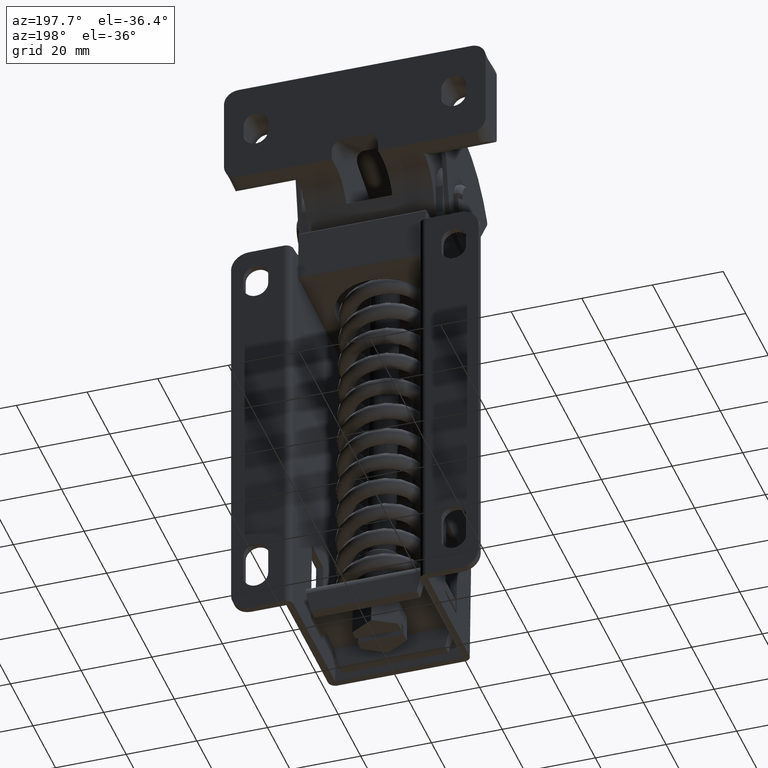
[diagram: clean part render]
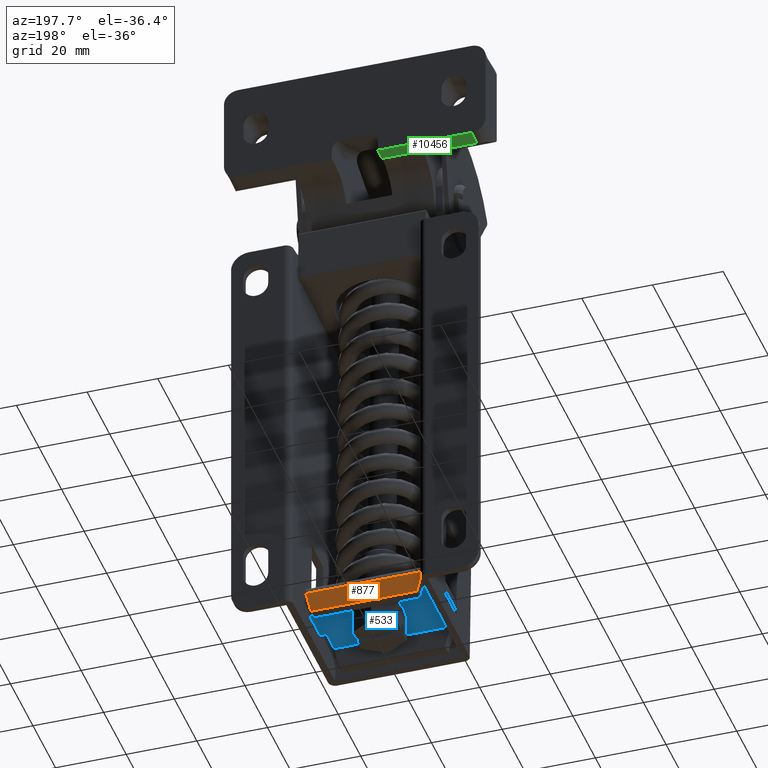
[diagram: same view with three faces highlighted in distinct colors, each labeled with its STEP entity id]
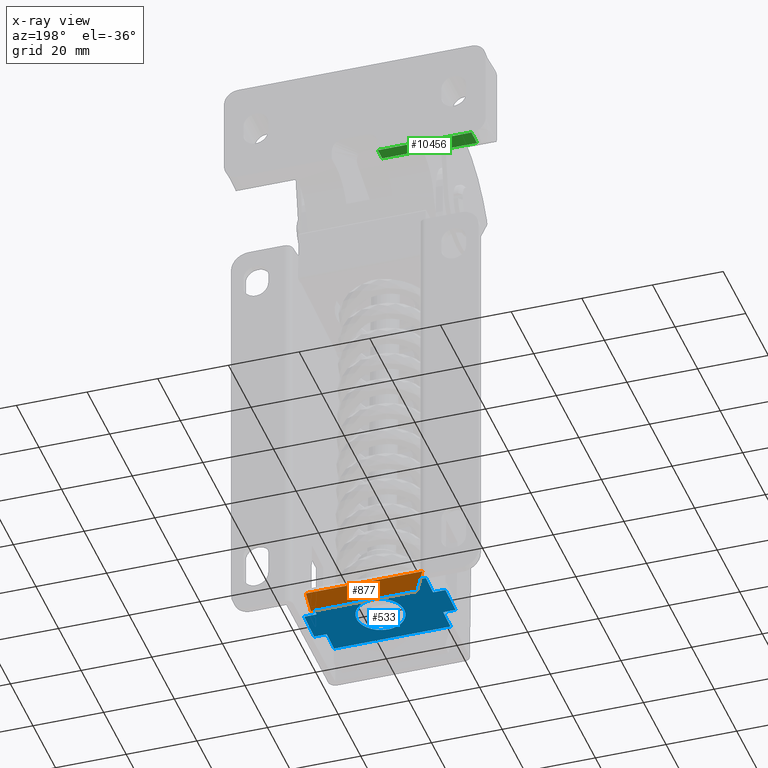
[diagram: x-ray of the same camera — body ghosted, the three highlighted faces saturated]
A machine part, auxiliary view with three faces highlighted in distinct colors.
The next image is the same camera in x-ray (body ghosted, the three faces saturated) — at least one of them is partly hidden behind the body in this view.
Their STEP definitions:

[orange] entity #877 — the highlighted face is a freeform B-spline surface patch.
#358=CARTESIAN_POINT('',(16.499504424450251,20.0,-134.536911000000000));
#359=VERTEX_POINT('',#358);
#365=CARTESIAN_POINT('',(-16.499504424450251,20.0,-134.536911000000000));
#366=VERTEX_POINT('',#365);
#367=CARTESIAN_POINT('',(-16.499504424450251,20.0,-134.536911000000000));
#368=CARTESIAN_POINT('',(16.499504424450251,20.0,-134.536911000000000));
#369=QUASI_UNIFORM_CURVE('',1,(#367,#368),.UNSPECIFIED.,.F.,.U.);
#370=EDGE_CURVE('',#366,#359,#369,.T.);
#539=CARTESIAN_POINT('',(-15.0,20.0,-140.999985000000010));
#540=VERTEX_POINT('',#539);
#553=CARTESIAN_POINT('',(-15.0,20.0,-140.999985000000010));
#554=CARTESIAN_POINT('',(-16.499504424450251,20.0,-134.536911000000000));
#555=QUASI_UNIFORM_CURVE('',1,(#553,#554),.UNSPECIFIED.,.F.,.U.);
#556=EDGE_CURVE('',#540,#366,#555,.T.);
#572=CARTESIAN_POINT('',(15.0,20.0,-140.999985000000010));
#573=VERTEX_POINT('',#572);
#579=CARTESIAN_POINT('',(16.499504424450251,20.0,-134.536911000000000));
#580=CARTESIAN_POINT('',(15.0,20.0,-140.999985000000010));
#581=QUASI_UNIFORM_CURVE('',1,(#579,#580),.UNSPECIFIED.,.F.,.U.);
#582=EDGE_CURVE('',#359,#573,#581,.T.);
#862=CARTESIAN_POINT('',(-18.147804542723261,20.0,-141.322815291090510));
#863=CARTESIAN_POINT('',(-18.147804542723261,20.0,-134.214080304418900));
#864=CARTESIAN_POINT('',(18.147805722859779,20.0,-141.322815291090510));
#865=CARTESIAN_POINT('',(18.147805722859779,20.0,-134.214080304418900));
#866=B_SPLINE_SURFACE_WITH_KNOTS('',1,1,((#862,#864),(#863,#865)),.UNSPECIFIED.,.F.,.F.,.U.,(2,2),(2,2),(0.0,7.108734986671578),(0.0,36.295610265583051),.UNSPECIFIED.);
#867=ORIENTED_EDGE('',*,*,#556,.T.);
#868=ORIENTED_EDGE('',*,*,#370,.T.);
#869=ORIENTED_EDGE('',*,*,#582,.T.);
#870=CARTESIAN_POINT('',(-15.0,20.0,-140.999985000000010));
#871=CARTESIAN_POINT('',(15.0,20.0,-140.999985000000010));
#872=QUASI_UNIFORM_CURVE('',1,(#870,#871),.UNSPECIFIED.,.F.,.U.);
#873=EDGE_CURVE('',#540,#573,#872,.T.);
#874=ORIENTED_EDGE('',*,*,#873,.F.);
#875=EDGE_LOOP('',(#867,#868,#869,#874));
#876=FACE_OUTER_BOUND('',#875,.T.);
#877=ADVANCED_FACE('',(#876),#866,.T.);

[blue] entity #533 — the highlighted face is a freeform B-spline surface patch.
#62=CARTESIAN_POINT('',(-0.837864014509651,12.170217009320570,-134.534775000000000));
#63=VERTEX_POINT('',#62);
#64=CARTESIAN_POINT('',(-6.750000000000001,5.472420066057080,-134.534775000000000));
#65=VERTEX_POINT('',#64);
#66=CARTESIAN_POINT('',(-0.837864014509651,12.170217009320572,-134.534774999999970));
#67=CARTESIAN_POINT('',(-6.750000000000002,11.430635616226965,-134.534775000000000));
#68=CARTESIAN_POINT('',(-6.750000000000001,5.472420066057080,-134.534775000000000));
#76=(BOUNDED_CURVE()B_SPLINE_CURVE(2,(#66,#67,#68),.UNSPECIFIED.,.F.,.U.)B_SPLINE_CURVE_WITH_KNOTS((3,3),(0.271473928994410,0.500000000000000),.UNSPECIFIED.)CURVE()GEOMETRIC_REPRESENTATION_ITEM()RATIONAL_B_SPLINE_CURVE((0.954005430228709,0.732265053921525,1.0))REPRESENTATION_ITEM(''));
#77=EDGE_CURVE('',#63,#65,#76,.T.);
#118=CARTESIAN_POINT('',(0.058904115300653,-1.277322914620082,-134.534775000000000));
#119=VERTEX_POINT('',#118);
#125=CARTESIAN_POINT('',(-6.750000000000001,5.472420066057080,-134.534775000000000));
#126=CARTESIAN_POINT('',(-6.750000000000001,-1.277579933942920,-134.534775000000000));
#127=CARTESIAN_POINT('',(-6.661338E-016,-1.277579933942920,-134.534775000000000));
#128=CARTESIAN_POINT('',(0.029452618726417,-1.277579933942920,-134.534775000000000));
#129=CARTESIAN_POINT('',(0.058904115300653,-1.277322914620082,-134.534775000000000));
#137=(BOUNDED_CURVE()B_SPLINE_CURVE(2,(#125,#126,#127,#128,#129),.UNSPECIFIED.,.F.,.U.)B_SPLINE_CURVE_WITH_KNOTS((3,2,3),(0.500000000000000,0.750000000000000,0.751539894370825),.UNSPECIFIED.)CURVE()GEOMETRIC_REPRESENTATION_ITEM()RATIONAL_B_SPLINE_CURVE((1.0,0.707106781186548,1.0,0.998195901524386,0.996414028017468))REPRESENTATION_ITEM(''));
#138=EDGE_CURVE('',#65,#119,#137,.T.);
#165=CARTESIAN_POINT('',(6.749999999999999,5.472420066057080,-134.534775000000000));
#166=VERTEX_POINT('',#165);
#167=CARTESIAN_POINT('',(6.749999999999999,5.472420066057080,-134.534775000000000));
#168=CARTESIAN_POINT('',(6.749999999999999,12.222420066057081,-134.534775000000000));
#169=CARTESIAN_POINT('',(-6.661338E-016,12.222420066057079,-134.534775000000000));
#170=CARTESIAN_POINT('',(-0.420558261327402,12.222420066057083,-134.534775000000020));
#171=CARTESIAN_POINT('',(-0.837864014509651,12.170217009320572,-134.534774999999970));
#179=(BOUNDED_CURVE()B_SPLINE_CURVE(2,(#167,#168,#169,#170,#171),.UNSPECIFIED.,.F.,.U.)B_SPLINE_CURVE_WITH_KNOTS((3,2,3),(0.0,0.250000000000000,0.271473928994410),.UNSPECIFIED.)CURVE()GEOMETRIC_REPRESENTATION_ITEM()RATIONAL_B_SPLINE_CURVE((1.0,0.707106781186548,1.0,0.974841727265023,0.954005430228709))REPRESENTATION_ITEM(''));
#180=EDGE_CURVE('',#166,#63,#179,.T.);
#182=CARTESIAN_POINT('',(0.058904115300653,-1.277322914620082,-134.534775000000000));
#183=CARTESIAN_POINT('',(6.749999999999999,-1.218930604097590,-134.534775000000000));
#184=CARTESIAN_POINT('',(6.749999999999999,5.472420066057080,-134.534775000000000));
#192=(BOUNDED_CURVE()B_SPLINE_CURVE(2,(#182,#183,#184),.UNSPECIFIED.,.F.,.U.)B_SPLINE_CURVE_WITH_KNOTS((3,3),(0.751539894370824,1.0),.UNSPECIFIED.)CURVE()GEOMETRIC_REPRESENTATION_ITEM()RATIONAL_B_SPLINE_CURVE((0.996414028017469,0.708910879662161,1.0))REPRESENTATION_ITEM(''));
#193=EDGE_CURVE('',#119,#166,#192,.T.);
#394=CARTESIAN_POINT('',(-16.500000000000000,-5.0,-134.534775000000000));
#395=VERTEX_POINT('',#394);
#401=CARTESIAN_POINT('',(16.500000000000000,-5.0,-134.534775000000000));
#402=VERTEX_POINT('',#401);
#403=CARTESIAN_POINT('',(-16.500000000000000,-5.0,-134.534775000000000));
#404=CARTESIAN_POINT('',(16.500000000000000,-5.0,-134.534775000000000));
#405=QUASI_UNIFORM_CURVE('',1,(#403,#404),.UNSPECIFIED.,.F.,.U.);
#406=EDGE_CURVE('',#395,#402,#405,.T.);
#421=CARTESIAN_POINT('',(16.500000000000000,17.0,-134.534775000000000));
#422=VERTEX_POINT('',#421);
#423=CARTESIAN_POINT('',(-16.500000000000000,17.0,-134.534775000000000));
#424=VERTEX_POINT('',#423);
#425=CARTESIAN_POINT('',(16.500000000000000,17.0,-134.534775000000000));
#426=CARTESIAN_POINT('',(-16.500000000000000,17.0,-134.534775000000000));
#427=QUASI_UNIFORM_CURVE('',1,(#425,#426),.UNSPECIFIED.,.F.,.U.);
#428=EDGE_CURVE('',#422,#424,#427,.T.);
#452=CARTESIAN_POINT('',(-21.997999922472239,-6.098899957359731,-134.534775000000000));
#453=CARTESIAN_POINT('',(21.998000995355849,-6.098899957359731,-134.534775000000000));
#454=CARTESIAN_POINT('',(-21.997999922472239,18.098900547445709,-134.534775000000000));
#455=CARTESIAN_POINT('',(21.998000995355849,18.098900547445709,-134.534775000000000));
#456=B_SPLINE_SURFACE_WITH_KNOTS('',1,1,((#452,#454),(#453,#455)),.UNSPECIFIED.,.F.,.F.,.U.,(2,2),(2,2),(0.0,43.996000917828077),(0.0,24.197800504805439),.UNSPECIFIED.);
#457=CARTESIAN_POINT('',(-16.500000000000000,1.500000000000170,-134.534775000000000));
#458=VERTEX_POINT('',#457);
#459=CARTESIAN_POINT('',(-20.0,1.500000000000000,-134.534775000000000));
#460=VERTEX_POINT('',#459);
#461=CARTESIAN_POINT('',(-16.500000000000000,1.500000000000170,-134.534775000000000));
#462=CARTESIAN_POINT('',(-20.0,1.500000000000000,-134.534775000000000));
#463=QUASI_UNIFORM_CURVE('',1,(#461,#462),.UNSPECIFIED.,.F.,.U.);
#464=EDGE_CURVE('',#458,#460,#463,.T.);
#465=ORIENTED_EDGE('',*,*,#464,.T.);
#466=CARTESIAN_POINT('',(-20.0,10.500000000000000,-134.534775000000000));
#467=VERTEX_POINT('',#466);
#468=CARTESIAN_POINT('',(-20.0,1.500000000000000,-134.534775000000000));
#469=CARTESIAN_POINT('',(-20.0,10.500000000000000,-134.534775000000000));
#470=QUASI_UNIFORM_CURVE('',1,(#468,#469),.UNSPECIFIED.,.F.,.U.);
#471=EDGE_CURVE('',#460,#467,#470,.T.);
#472=ORIENTED_EDGE('',*,*,#471,.T.);
#473=CARTESIAN_POINT('',(-16.500000000000000,10.500000000000000,-134.534775000000000));
#474=VERTEX_POINT('',#473);
#475=CARTESIAN_POINT('',(-20.0,10.500000000000000,-134.534775000000000));
#476=CARTESIAN_POINT('',(-16.500000000000000,10.500000000000000,-134.534775000000000));
#477=QUASI_UNIFORM_CURVE('',1,(#475,#476),.UNSPECIFIED.,.F.,.U.);
#478=EDGE_CURVE('',#467,#474,#477,.T.);
#479=ORIENTED_EDGE('',*,*,#478,.T.);
#480=CARTESIAN_POINT('',(-16.500000000000000,17.0,-134.534775000000000));
#481=CARTESIAN_POINT('',(-16.500000000000000,10.500000000000000,-134.534775000000000));
#482=QUASI_UNIFORM_CURVE('',1,(#480,#481),.UNSPECIFIED.,.F.,.U.);
#483=EDGE_CURVE('',#424,#474,#482,.T.);
#484=ORIENTED_EDGE('',*,*,#483,.F.);
#485=ORIENTED_EDGE('',*,*,#428,.F.);
#486=CARTESIAN_POINT('',(16.500000000000000,10.500000000000179,-134.534775000000000));
#487=VERTEX_POINT('',#486);
#488=CARTESIAN_POINT('',(16.500000000000000,10.500000000000179,-134.534775000000000));
#489=CARTESIAN_POINT('',(16.500000000000000,17.0,-134.534775000000000));
#490=QUASI_UNIFORM_CURVE('',1,(#488,#489),.UNSPECIFIED.,.F.,.U.);
#491=EDGE_CURVE('',#487,#422,#490,.T.);
#492=ORIENTED_EDGE('',*,*,#491,.F.);
#493=CARTESIAN_POINT('',(20.0,10.500000000000000,-134.534775000000000));
#494=VERTEX_POINT('',#493);
#495=CARTESIAN_POINT('',(16.500000000000000,10.500000000000179,-134.534775000000000));
#496=CARTESIAN_POINT('',(20.0,10.500000000000000,-134.534775000000000));
#497=QUASI_UNIFORM_CURVE('',1,(#495,#496),.UNSPECIFIED.,.F.,.U.);
#498=EDGE_CURVE('',#487,#494,#497,.T.);
#499=ORIENTED_EDGE('',*,*,#498,.T.);
#500=CARTESIAN_POINT('',(20.0,1.500000000000000,-134.534775000000000));
#501=VERTEX_POINT('',#500);
#502=CARTESIAN_POINT('',(20.0,10.500000000000000,-134.534775000000000));
#503=CARTESIAN_POINT('',(20.0,1.500000000000000,-134.534775000000000));
#504=QUASI_UNIFORM_CURVE('',1,(#502,#503),.UNSPECIFIED.,.F.,.U.);
#505=EDGE_CURVE('',#494,#501,#504,.T.);
#506=ORIENTED_EDGE('',*,*,#505,.T.);
#507=CARTESIAN_POINT('',(16.500000000000000,1.500000000000170,-134.534775000000000));
#508=VERTEX_POINT('',#507);
#509=CARTESIAN_POINT('',(20.0,1.500000000000000,-134.534775000000000));
#510=CARTESIAN_POINT('',(16.500000000000000,1.500000000000170,-134.534775000000000));
#511=QUASI_UNIFORM_CURVE('',1,(#509,#510),.UNSPECIFIED.,.F.,.U.);
#512=EDGE_CURVE('',#501,#508,#511,.T.);
#513=ORIENTED_EDGE('',*,*,#512,.T.);
#514=CARTESIAN_POINT('',(16.500000000000000,1.500000000000170,-134.534775000000000));
#515=CARTESIAN_POINT('',(16.500000000000000,-5.0,-134.534775000000000));
#516=QUASI_UNIFORM_CURVE('',1,(#514,#515),.UNSPECIFIED.,.F.,.U.);
#517=EDGE_CURVE('',#508,#402,#516,.T.);
#518=ORIENTED_EDGE('',*,*,#517,.T.);
#519=ORIENTED_EDGE('',*,*,#406,.F.);
#520=CARTESIAN_POINT('',(-16.500000000000000,1.500000000000170,-134.534775000000000));
#521=CARTESIAN_POINT('',(-16.500000000000000,-5.0,-134.534775000000000));
#522=QUASI_UNIFORM_CURVE('',1,(#520,#521),.UNSPECIFIED.,.F.,.U.);
#523=EDGE_CURVE('',#458,#395,#522,.T.);
#524=ORIENTED_EDGE('',*,*,#523,.F.);
#525=EDGE_LOOP('',(#465,#472,#479,#484,#485,#492,#499,#506,#513,#518,#519,#524));
#526=FACE_OUTER_BOUND('',#525,.T.);
#527=ORIENTED_EDGE('',*,*,#138,.T.);
#528=ORIENTED_EDGE('',*,*,#193,.T.);
#529=ORIENTED_EDGE('',*,*,#180,.T.);
#530=ORIENTED_EDGE('',*,*,#77,.T.);
#531=EDGE_LOOP('',(#527,#528,#529,#530));
#532=FACE_BOUND('',#531,.T.);
#533=ADVANCED_FACE('',(#526,#532),#456,.F.);

[green] entity #10456 — the highlighted face is a freeform B-spline surface patch.
#8802=CARTESIAN_POINT('',(-33.0,28.000022946517099,4.0));
#8803=VERTEX_POINT('',#8802);
#8817=CARTESIAN_POINT('',(-33.0,23.000041524337799,4.0));
#8818=VERTEX_POINT('',#8817);
#8819=CARTESIAN_POINT('',(-33.0,23.000041524337799,4.0));
#8820=CARTESIAN_POINT('',(-33.0,28.000022946517099,4.0));
#8821=QUASI_UNIFORM_CURVE('',1,(#8819,#8820),.UNSPECIFIED.,.F.,.U.);
#8822=EDGE_CURVE('',#8818,#8803,#8821,.T.);
#9313=CARTESIAN_POINT('',(-6.500000000000000,28.000022946517099,4.0));
#9314=VERTEX_POINT('',#9313);
#9368=CARTESIAN_POINT('',(-6.500000000000000,24.076369187880800,4.0));
#9369=VERTEX_POINT('',#9368);
#9385=CARTESIAN_POINT('',(-6.500000000000000,28.000022946517099,4.0));
#9386=CARTESIAN_POINT('',(-6.500000000000000,24.076369187880800,4.0));
#9387=QUASI_UNIFORM_CURVE('',1,(#9385,#9386),.UNSPECIFIED.,.F.,.U.);
#9388=EDGE_CURVE('',#9314,#9369,#9387,.T.);
#9634=CARTESIAN_POINT('',(-18.0,23.000041524337799,4.0));
#9635=VERTEX_POINT('',#9634);
#9641=CARTESIAN_POINT('',(-18.0,24.076369187880800,4.0));
#9642=VERTEX_POINT('',#9641);
#9643=CARTESIAN_POINT('',(-18.0,23.000041524337799,4.0));
#9644=CARTESIAN_POINT('',(-18.0,24.076369187880800,4.0));
#9645=QUASI_UNIFORM_CURVE('',1,(#9643,#9644),.UNSPECIFIED.,.F.,.U.);
#9646=EDGE_CURVE('',#9635,#9642,#9645,.T.);
#10243=CARTESIAN_POINT('',(-18.0,23.000041524337799,4.0));
#10244=CARTESIAN_POINT('',(-33.0,23.000041524337799,4.0));
#10245=QUASI_UNIFORM_CURVE('',1,(#10243,#10244),.UNSPECIFIED.,.F.,.U.);
#10246=EDGE_CURVE('',#9635,#8818,#10245,.T.);
#10394=CARTESIAN_POINT('',(-6.500000000000000,24.076369187880800,4.0));
#10395=CARTESIAN_POINT('',(-18.0,24.076369187880800,4.0));
#10396=QUASI_UNIFORM_CURVE('',1,(#10394,#10395),.UNSPECIFIED.,.F.,.U.);
#10397=EDGE_CURVE('',#9369,#9642,#10396,.T.);
#10418=CARTESIAN_POINT('',(-6.500000000000000,28.000022946517099,4.0));
#10419=CARTESIAN_POINT('',(-33.0,28.000022946517099,4.0));
#10420=QUASI_UNIFORM_CURVE('',1,(#10418,#10419),.UNSPECIFIED.,.F.,.U.);
#10421=EDGE_CURVE('',#9314,#8803,#10420,.T.);
#10443=CARTESIAN_POINT('',(-34.323674948637859,22.750292884417110,4.0));
#10444=CARTESIAN_POINT('',(-5.176324340576755,22.750292884417110,4.0));
#10445=CARTESIAN_POINT('',(-34.323674948637859,28.249772122877602,4.0));
#10446=CARTESIAN_POINT('',(-5.176324340576755,28.249772122877602,4.0));
#10447=B_SPLINE_SURFACE_WITH_KNOTS('',1,1,((#10443,#10445),(#10444,#10446)),.UNSPECIFIED.,.F.,.F.,.U.,(2,2),(2,2),(0.0,29.147350608061100),(0.0,5.499479238460491),.UNSPECIFIED.);
#10448=ORIENTED_EDGE('',*,*,#10246,.T.);
#10449=ORIENTED_EDGE('',*,*,#8822,.T.);
#10450=ORIENTED_EDGE('',*,*,#10421,.F.);
#10451=ORIENTED_EDGE('',*,*,#9388,.T.);
#10452=ORIENTED_EDGE('',*,*,#10397,.T.);
#10453=ORIENTED_EDGE('',*,*,#9646,.F.);
#10454=EDGE_LOOP('',(#10448,#10449,#10450,#10451,#10452,#10453));
#10455=FACE_OUTER_BOUND('',#10454,.T.);
#10456=ADVANCED_FACE('',(#10455),#10447,.F.);